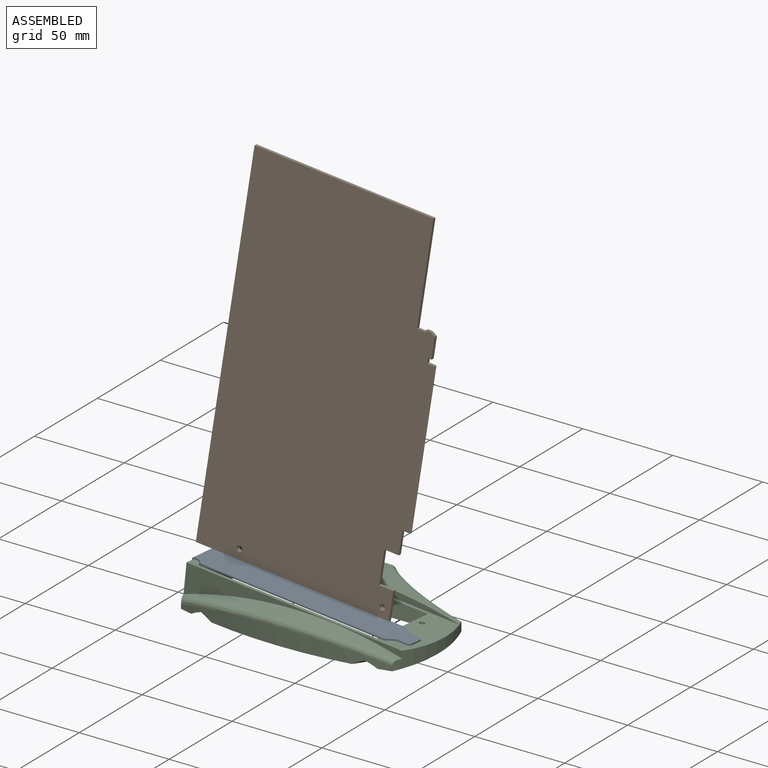
[diagram: assembled view]
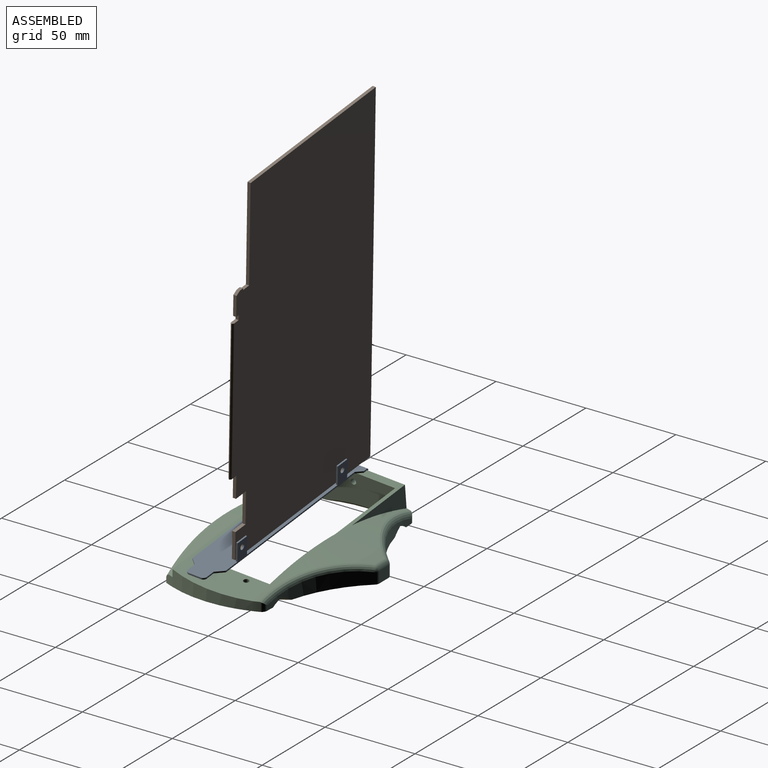
[diagram: assembled view, second angle]
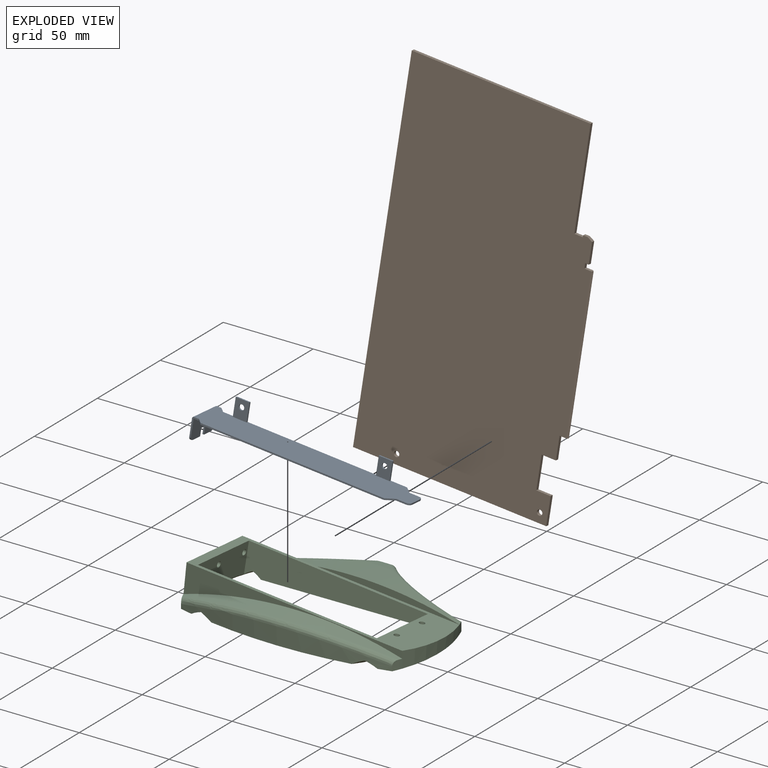
[diagram: exploded view]
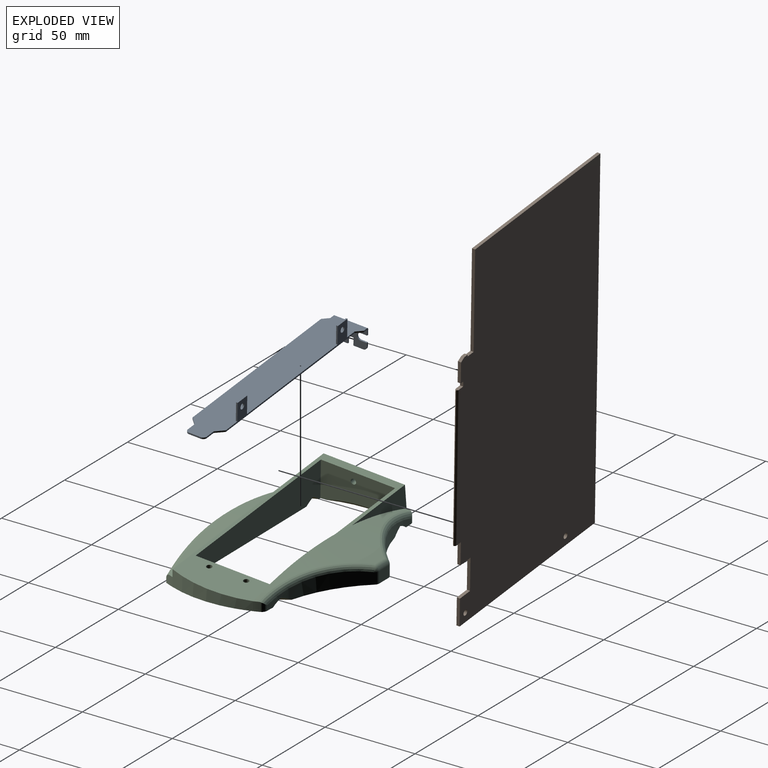
[diagram: exploded view, second angle]
ASSEMBLY  parts=3 mates=3
PART A: 39 faces, bbox 21.5x22.3x120.9 mm
  f0: plane 119.85x21.5mm, normal (0,1,0), area 2126.2mm2, adj f2,f3,f4,f5,f6,f7,f8,f10
  f1: plane 120x21.5mm, normal (0,-1,0), area 2142.1mm2, adj f2,f3,f4,f5,f6,f7,f8,f10
  f2: plane 5.45x0.85mm, normal (-1,0,0), area 4.6mm2, adj f0,f1,f13,f26
  f3: plane 6.5x0.85mm, normal (0,0,-1), area 5.5mm2, adj f0,f1,f26,f27
  f4: plane 5.45x0.85mm, normal (1,0,0), area 4.6mm2, adj f0,f1,f5,f27
  f5: plane 4x4mm, normal (0.71,0,-0.71), area 4.8mm2, adj f0,f1,f4,f6
  f6: plane 102.7x0.85mm, normal (1,0,0), area 87.3mm2, adj f0,f1,f5,f7
  f7: plane 3x3mm, normal (0.71,0,0.71), area 3.6mm2, adj f0,f1,f6,f8
  f8: plane 10.2x3.7mm, normal (1,0,0), area 10.9mm2, adj f0,f1,f7,f9,f23,f24,f28
  f9: plane 18.5x11.2mm, normal (0,0,1), area 171.9mm2, adj f8,f10,f14,f15,f16,f17,f18,f19
  f10: plane 4x3.5mm, normal (-1,0,0), area 5.4mm2, adj f0,f1,f9,f11,f15,f23,f28
  f11: plane 3x3mm, normal (-0.71,0,-0.71), area 3.6mm2, adj f0,f1,f10,f12
  f12: plane 102.9x10.9mm, normal (-1,0,0), area 228.1mm2, adj f0,f1,f11,f13,f29,f30,f32,f33
  f13: plane 4x4mm, normal (-0.71,0,-0.71), area 4.8mm2, adj f0,f1,f2,f12
  f14: plane 5.95x0.85mm, normal (0,-1,0), area 5.1mm2, adj f9,f22,f23,f24
  f15: plane 3.5x0.85mm, normal (0,-1,0), area 3mm2, adj f9,f10,f16,f23
  f16: cylinder r=2mm len=4mm, axis (0,0,1), area 5.3mm2, adj f9,f15,f17,f23
  f17: plane 3.5x0.85mm, normal (0,1,0), area 3mm2, adj f9,f16,f18,f23
  f18: plane 2.2x0.85mm, normal (-1,0,0), area 1.9mm2, adj f9,f17,f23,f25
  f19: plane 5.45x0.85mm, normal (0,-1,0), area 4.6mm2, adj f9,f20,f23,f25
  f20: plane 4.3x0.85mm, normal (1,0,0), area 3.7mm2, adj f9,f19,f21,f23
  f21: plane 3.1x0.85mm, normal (0,-1,0), area 2.6mm2, adj f9,f20,f22,f23
  f22: plane 4.3x0.85mm, normal (-1,0,0), area 3.7mm2, adj f9,f14,f21,f23
  f23: plane 18.5x11.35mm, normal (0,0,-1), area 174.6mm2, adj f1,f8,f10,f14,f15,f16,f17,f18
  f24: cylinder r=2mm len=2mm, axis (0,0,-1), area 2.7mm2, adj f8,f9,f14,f23
  f25: cylinder r=2mm len=2mm, axis (0,0,1), area 2.7mm2, adj f9,f18,f19,f23
  f26: cylinder r=2mm len=2mm, axis (0,1,0), area 2.7mm2, adj f0,f1,f2,f3
  f27: cylinder r=2mm len=2mm, axis (0,1,0), area 2.7mm2, adj f0,f1,f3,f4
  f28: cylinder r=1mm len=18.5mm, axis (-1,0,0), area 29.1mm2, adj f0,f8,f9,f10
  f29: plane 10.05x0.85mm, normal (0,0,-1), area 8.5mm2, adj f0,f12,f31,f32
  f30: plane 10.05x0.85mm, normal (0,0,1), area 8.5mm2, adj f0,f12,f31,f32
  f31: plane 10.05x7.7mm, normal (1,0,0), area 70.3mm2, adj f0,f29,f30,f32,f33
  f32: plane 7.7x0.85mm, normal (0,1,0), area 6.5mm2, adj f12,f29,f30,f31
  f33: cylinder r=1.5mm len=3mm, axis (-1,0,0), area 8mm2, adj f12,f31
  f34: plane 10.05x7.7mm, normal (1,0,0), area 70.3mm2, adj f0,f35,f36,f37,f38
  f35: plane 10.05x0.85mm, normal (0,0,-1), area 8.5mm2, adj f0,f12,f34,f37
  f36: plane 10.05x0.85mm, normal (0,0,1), area 8.5mm2, adj f0,f12,f34,f37
  f37: plane 7.7x0.85mm, normal (0,1,0), area 6.5mm2, adj f12,f34,f35,f36
  f38: cylinder r=1.5mm len=3mm, axis (-1,0,0), area 8mm2, adj f12,f34
PART B: 25 faces, bbox 1.8x200x112.5 mm
  f0: plane 4.8x1.75mm, normal (0,1,0), area 8.4mm2, adj f9,f13,f14,f22
  f1: plane 2.7x1.75mm, normal (0,0,-1), area 4.7mm2, adj f13,f14,f17,f18
  f2: plane 200x1.75mm, normal (0,0,1), area 350mm2, adj f3,f11,f13,f14
  f3: plane 108x1.75mm, normal (0,-1,0), area 189mm2, adj f2,f4,f13,f14
  f4: plane 15.15x1.75mm, normal (0,0,-1), area 26.5mm2, adj f3,f5,f13,f14
  f5: plane 8x1.75mm, normal (0,1,0), area 14mm2, adj f4,f6,f13,f14
  f6: plane 18x1.75mm, normal (0,0,-1), area 31.5mm2, adj f5,f7,f13,f14
  f7: plane 8x1.75mm, normal (0,-1,0), area 14mm2, adj f6,f8,f13,f14
  f8: plane 12.5x1.75mm, normal (0,0,-1), area 21.9mm2, adj f7,f13,f14,f15
  f9: plane 55.45x1.75mm, normal (0,0,-1), area 97mm2, adj f0,f11,f13,f14
  f10: cylinder r=1.5mm len=3mm, axis (-1,0,0), area 16.5mm2, adj f13,f14
  f11: plane 100x1.75mm, normal (0,1,0), area 175mm2, adj f2,f9,f13,f14
  f12: cylinder r=1.5mm len=3mm, axis (-1,0,0), area 16.5mm2, adj f13,f14
  f13: plane 200x111.75mm, normal (1,0,0), area 21341.4mm2, adj f0,f1,f2,f3,f4,f5,f6,f7
  f14: plane 200x111.75mm, normal (-1,0,0), area 21341.4mm2, adj f0,f1,f2,f3,f4,f5,f6,f7
  f15: plane 4.5x1.75mm, normal (0,-1,0), area 7.3mm2, adj f8,f13,f14,f16,f23,f24
  f16: plane 84.3x0.25mm, normal (0,0,-1), area 21.1mm2, adj f15,f17,f23,f24
  f17: plane 4.5x1.75mm, normal (0,1,0), area 7.3mm2, adj f1,f13,f14,f16,f23,f24
  f18: plane 2x1.75mm, normal (0,-1,0), area 3.5mm2, adj f1,f13,f14,f19
  f19: plane 11.4x1.75mm, normal (0,0,-1), area 20mm2, adj f13,f14,f18,f20
  f20: plane 2.7x1.75mm, normal (0,0.87,-0.49), area 5.4mm2, adj f13,f14,f19,f21
  f21: plane 2.5x1.75mm, normal (0,1,0), area 4.4mm2, adj f13,f14,f20,f22
  f22: plane 1.75x1mm, normal (0,0,1), area 1.8mm2, adj f0,f13,f14,f21
  f23: plane 84.3x0.75mm, normal (0.71,0,-0.71), area 89.4mm2, adj f13,f15,f16,f17
  f24: plane 84.3x0.75mm, normal (-0.71,0,-0.71), area 89.4mm2, adj f14,f15,f16,f17
PART C: 48 faces, bbox 134.9x131.5x23.1 mm
  f0: plane 98.16x88.01mm, normal (0,0,-1), area 2951.7mm2, adj f2,f3,f4,f5,f7,f8,f9,f16
  f1: plane 56.91x13.29mm, normal (0,0,-1), area 313.3mm2, adj f7,f9,f11,f39,f42
  f2: plane 101.65x20.71mm, normal (-0.01,1,-0.09), area 1550.1mm2, adj f0,f6,f14,f16,f17,f44,f45
  f3: plane 101.46x17.34mm, normal (0.01,-1,0.09), area 1190.3mm2, adj f0,f6,f16,f17,f46,f47
  f4: cylinder r=1.5mm len=9.54mm, axis (0.1,0.09,0.99), area 85.7mm2, adj f0,f17,f43
  f5: cylinder r=1.5mm len=7.58mm, axis (0.1,0.09,0.99), area 67.9mm2, adj f0,f17,f43
  f6: plane 42.83x20.66mm, normal (0.99,0,-0.1), area 702.7mm2, adj f2,f3,f14,f17,f21,f22,f47
  f7: cylinder r=71.02mm len=51.33mm, axis (0,0,-1), area 376.1mm2, adj f0,f1,f37,f39,f40,f42,f43
  f8: cylinder r=71.02mm len=51.33mm, axis (0,0,-1), area 376.1mm2, adj f0,f14,f32,f33,f34,f46,f47
  f9: cylinder r=240mm len=117.39mm, axis (0,0,-1), area 814.4mm2, adj f0,f1,f11,f12,f14,f41,f42,f43
  f10: sphere r=216.25mm, area 1481mm2, adj f11,f12,f15,f19,f20,f23,f24,f26
  f11: cylinder r=65mm len=53.19mm, axis (0,0,1), area 350mm2, adj f1,f9,f10,f13,f17,f18,f20,f39
  f12: cylinder r=65mm len=53.19mm, axis (0,0,1), area 272.4mm2, adj f9,f10,f13,f14,f32,f33,f41
  f13: sphere r=216.25mm, area 883.6mm2, adj f11,f12,f18,f41
  f14: plane 56.91x13.27mm, normal (0,0,-1), area 311.4mm2, adj f2,f6,f8,f9,f12,f32,f44,f47
  f15: plane 46.52x17.87mm, normal (-0.99,0,0.1), area 573.6mm2, adj f10,f17,f18,f19,f21,f22,f23,f24
  f16: plane 41.93x10.39mm, normal (-0.99,0,0.1), area 357.4mm2, adj f0,f2,f3,f17
  f17: plane 124.54x45mm, normal (0.1,0.09,0.99), area 1454.9mm2, adj f2,f3,f4,f5,f6,f11,f15,f16
  f18: plane 121.64x16.35mm, normal (0,-1,0), area 516.8mm2, adj f11,f13,f15,f17
  f19: plane 42.95x12.34mm, normal (0,1,0), area 227.4mm2, adj f10,f15,f17
  f20: plane 79x8.9mm, normal (0,-1,0), area 197.3mm2, adj f10,f11,f17
  f21: cylinder r=1.5mm len=5.28mm, axis (-0.99,0,0.1), area 47.1mm2, adj f6,f15
  f22: cylinder r=1.5mm len=5.28mm, axis (-0.99,0,0.1), area 47.1mm2, adj f6,f15
  f23: plane 6.15x3.63mm, normal (0.01,-1,0.09), area 16.7mm2, adj f10,f15,f25,f26
  f24: plane 6.09x3.63mm, normal (-0.01,1,-0.09), area 16.5mm2, adj f10,f15,f25,f26
  f25: plane 3x1.99mm, normal (0.1,0.09,0.99), area 6mm2, adj f15,f23,f24,f26
  f26: plane 6.26x2.55mm, normal (-0.99,0,0.1), area 12.3mm2, adj f10,f23,f24,f25
  f27: plane 3x1.99mm, normal (0.1,0.09,0.99), area 6mm2, adj f15,f28,f29,f30
  f28: plane 7.7x3.79mm, normal (-0.01,1,-0.09), area 21.4mm2, adj f10,f15,f27,f30
  f29: plane 7.97x3.82mm, normal (0.01,-1,0.09), area 22.2mm2, adj f10,f15,f27,f30
  f30: plane 7.98x2.71mm, normal (-0.99,0,0.1), area 15.8mm2, adj f10,f27,f28,f29
  f31: plane 7.26x6.28mm, normal (0,1,0), area 45.5mm2, adj f0,f34,f36,f37
  f32: cylinder r=3mm len=4.87mm, axis (0,0,-1), area 13.1mm2, adj f8,f12,f14,f33
  f33: bspline ~62.77x30.28mm, area 258.8mm2, adj f8,f10,f12,f32,f35
  f34: cylinder r=3mm len=6.25mm, axis (0,0,-1), area 15.9mm2, adj f0,f8,f31,f35
  f35: sphere r=3mm, area 4.4mm2, adj f33,f34,f36
  f36: torus R=207.53mm, axis (0,1,0), area 29.4mm2, adj f10,f31,f35,f38
  f37: cylinder r=3mm len=6.25mm, axis (0,0,-1), area 15.9mm2, adj f0,f7,f31,f38
  f38: sphere r=3mm, area 4.4mm2, adj f36,f37,f40
  f39: cylinder r=3mm len=4.87mm, axis (0,0,-1), area 13.1mm2, adj f1,f7,f11,f40
  f40: bspline ~62.77x30.28mm, area 258.8mm2, adj f7,f10,f11,f38,f39
  f41: bspline ~131.56x12.54mm, area 513.2mm2, adj f9,f11,f12,f13
  f42: revolved ~63.71x14.05mm, area 334.9mm2, adj f1,f7,f9,f43
  f43: revolved ~66.74x15.94mm, area 347.1mm2, adj f0,f4,f5,f7,f9,f42
  f44: revolved ~9.69x9.29mm, area 47.7mm2, adj f2,f9,f14,f45
  f45: revolved ~11.16x10.65mm, area 56.7mm2, adj f0,f2,f9,f44
  f46: revolved ~18.48x10.6mm, area 61.1mm2, adj f0,f3,f8,f47
  f47: revolved ~51.96x12.27mm, area 169.3mm2, adj f3,f6,f8,f14,f46
PLACE A rot(axis=(0.54,-0.59,-0.6),113.6deg) t=(65.18,3.18,15.94)mm
PLACE B rot(axis=(0.54,-0.59,-0.6),113.6deg) t=(65.18,3.18,15.94)mm
PLACE C t=(4.97,-8.78,12.11)mm fixed
MATE planar A.f1 <-> C.f17  axis (-0.1,-0.09,-0.99) through (2.71,-6.11,22.35)mm
MATE planar C.f15 <-> A.f23  axis (-0.99,0,0.1) through (-55.05,12.36,19.92)mm
MATE fastened A.f38 <-> B.f10  axis (-0.01,1,-0.09) through (-38.21,12.08,32.04)mm
